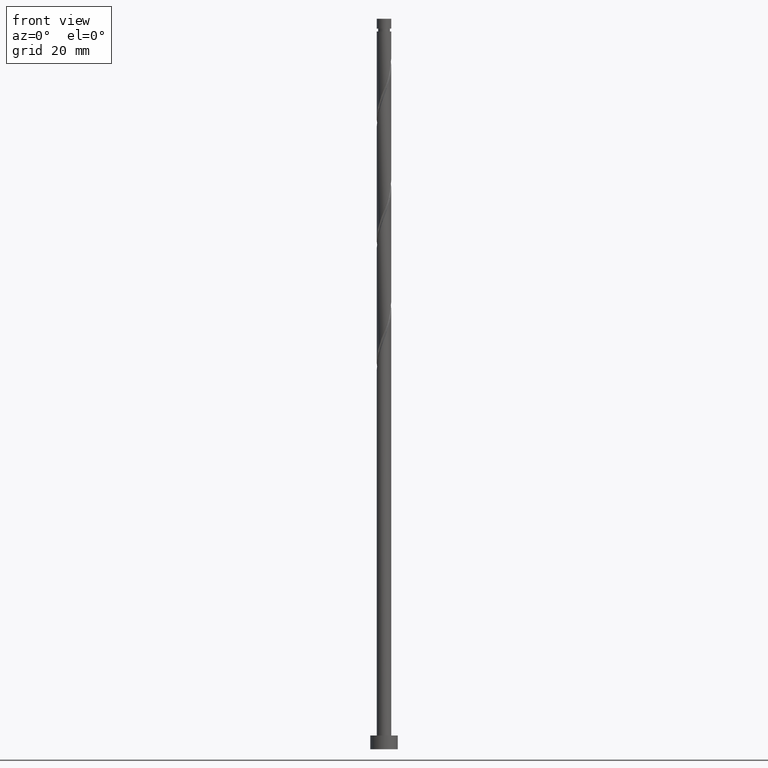
[diagram: clean part render]
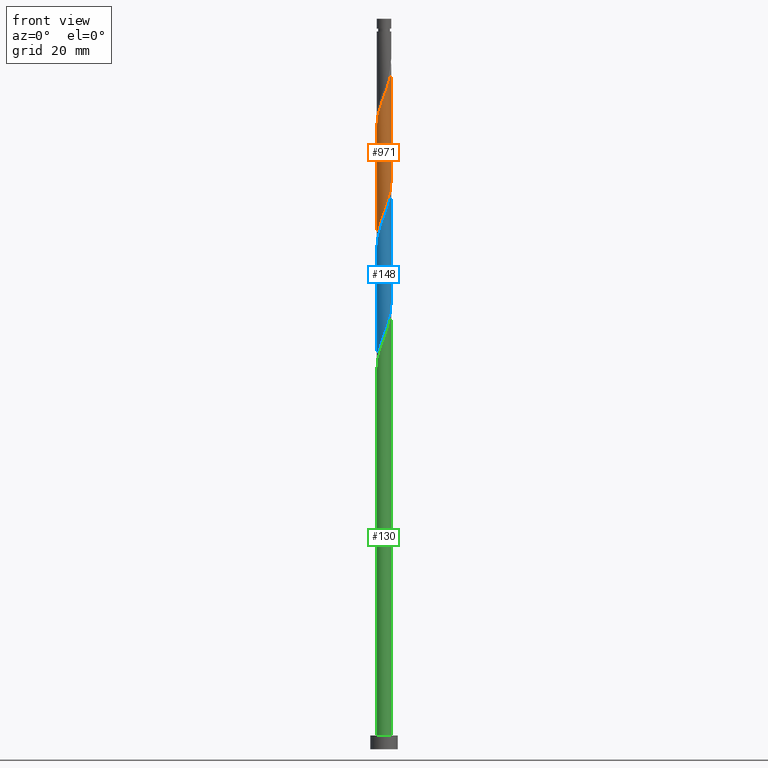
[diagram: same view with three faces highlighted in distinct colors, each labeled with its STEP entity id]
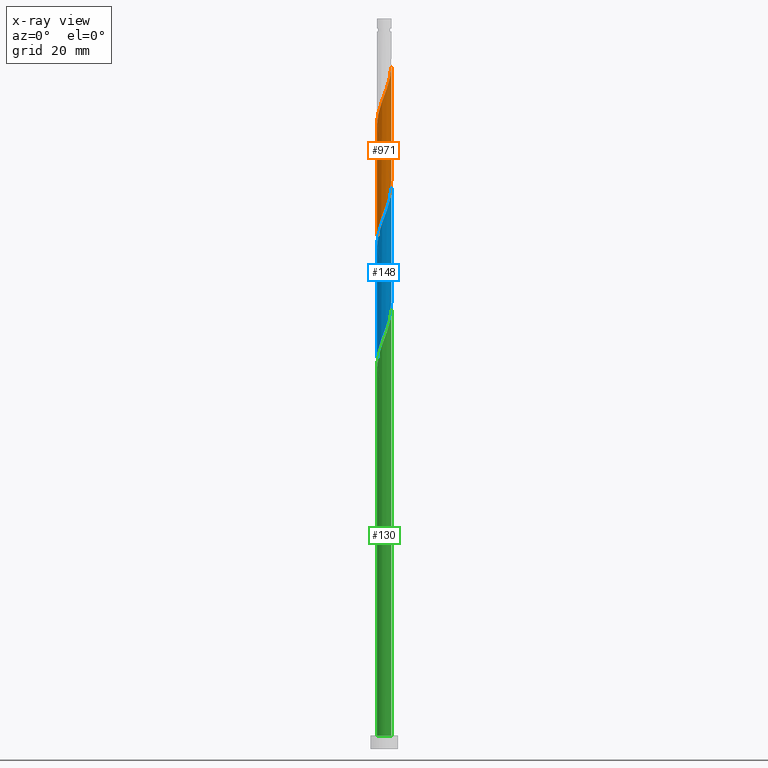
[diagram: x-ray of the same camera — body ghosted, the three highlighted faces saturated]
A machine part, front view with three faces highlighted in distinct colors.
The next image is the same camera in x-ray (body ghosted, the three faces saturated) — at least one of them is partly hidden behind the body in this view.
Their STEP definitions:

[orange] entity #971 — the highlighted cylindrical surface (edge-blend (fillet) strip) has radius 1.6 mm, axis along (-0, -0, -1).
#43 = CARTESIAN_POINT ( 'NONE',  ( -1.294036498596731199, -0.9409939108727107815, 139.0223680249231961 ) ) ;
#65 = CARTESIAN_POINT ( 'NONE',  ( 1.600000000000000089, -0.04604084243811525784, 124.5982093479907036 ) ) ;
#80 = CARTESIAN_POINT ( 'NONE',  ( 1.115576544678726467, -1.146947676645573955, 146.2950952976504198 ) ) ;
#86 = VERTEX_POINT ( 'NONE', #658 ) ;
#129 = CARTESIAN_POINT ( 'NONE',  ( -0.5438403448582374011, -1.522221569198840996, 116.5981256006807456 ) ) ;
#171 =( BOUNDED_CURVE ( )  B_SPLINE_CURVE ( 2, ( #1464, #65, #577, #1340, #1094, #1605, #1057, #453, #1195, #1571, #965, #176, #1095, #1615, #984, #129, #883, #1547, #258, #752, #248, #1293, #487, #507, #768 ),
 .UNSPECIFIED., .F., .T. ) 
 B_SPLINE_CURVE_WITH_KNOTS ( ( 3, 2, 2, 2, 2, 2, 2, 2, 2, 2, 2, 2, 3 ),
 ( 0.5545252162417512176, 0.5568181818181817677, 0.5681818181818182323, 0.5795454545454545858, 0.5909090909090909394, 0.6022727272727272929, 0.6136363636363636465, 0.6250000000000000000, 0.6363636363636363535, 0.6477272727272727071, 0.6590909090909090606, 0.6704545454545454142, 0.6795252162417513286 ),
 .UNSPECIFIED. ) 
 CURVE ( )  GEOMETRIC_REPRESENTATION_ITEM ( )  RATIONAL_B_SPLINE_CURVE ( ( 0.9061101570135671190, 0.9072237824201492273, 0.9090909090909268242, 0.8998376744372290625, 0.9090909090909268242, 0.8998376744372290625, 0.9090909090909268242, 0.8998376744372290625, 0.9090909090909268242, 0.8998376744372290625, 0.9090909090909268242, 0.8998376744372290625, 0.9090909090909268242, 0.8998376744372290625, 0.9090909090909268242, 0.8998376744372290625, 0.9090909090909268242, 0.8998376744372290625, 0.9090909090909268242, 0.8998376744372290625, 0.9090909090909268242, 0.8998376744372290625, 0.9090909090909268242, 0.9017048011080065484, 0.9061101570135671190 ) ) 
 REPRESENTATION_ITEM ( '' )  );
#176 = CARTESIAN_POINT ( 'NONE',  ( 0.3654675021120841749, -1.574596561449840948, 119.0223680249231961 ) ) ;
#179 = CARTESIAN_POINT ( 'NONE',  ( -1.600000000000000089, 0.000000000000000000, 160.0000000000000000 ) ) ;
#246 = VECTOR ( 'NONE', #1459, 1000.000000000000000 ) ;
#248 = CARTESIAN_POINT ( 'NONE',  ( -1.393520357653070585, -0.7861940045602343607, 113.5678225703777144 ) ) ;
#258 = CARTESIAN_POINT ( 'NONE',  ( -1.115576544678725579, -1.146947676645571956, 114.7799437824989326 ) ) ;
#308 = CARTESIAN_POINT ( 'NONE',  ( -1.158741999431794678, -1.127048271008177727, 139.6284286309837626 ) ) ;
#309 = CARTESIAN_POINT ( 'NONE',  ( 1.600000000000001865, -7.627978558783065711E-16, 149.6880650607737664 ) ) ;
#347 = CARTESIAN_POINT ( 'NONE',  ( 0.7472553546436820904, -1.414782469129566067, 145.0829740855291732 ) ) ;
#356 = EDGE_CURVE ( 'NONE', #473, #1479, #555, .T. ) ;
#359 = CARTESIAN_POINT ( 'NONE',  ( 0.9506703644291280009, -1.307343369060288252, 145.6890346915898533 ) ) ;
#398 = LINE ( 'NONE', #1288, #1561 ) ;
#409 = AXIS2_PLACEMENT_3D ( 'NONE', #745, #1241, #979 ) ;
#432 = CARTESIAN_POINT ( 'NONE',  ( -0.7942786156119749919, -1.407850243176184346, 140.8405498431049807 ) ) ;
#447 = CARTESIAN_POINT ( 'NONE',  ( 0.3183959798741190506, -1.568000000000002059, 143.8708528734080403 ) ) ;
#453 = CARTESIAN_POINT ( 'NONE',  ( 1.158741999431793124, -1.127048271008176172, 121.4466104491655898 ) ) ;
#470 = ORIENTED_EDGE ( 'NONE', *, *, #356, .F. ) ;
#473 = VERTEX_POINT ( 'NONE', #1499 ) ;
#477 = EDGE_LOOP ( 'NONE', ( #607, #470, #1509, #958 ) ) ;
#487 = CARTESIAN_POINT ( 'NONE',  ( -1.558569438835040399, -0.3617475699012057677, 112.3557013582565105 ) ) ;
#507 = CARTESIAN_POINT ( 'NONE',  ( -1.600000000000000755, -0.1832462838161953156, 111.8729339723468570 ) ) ;
#543 = CARTESIAN_POINT ( 'NONE',  ( -1.597352493251953831, -0.09200550147558182734, 136.5981256006807030 ) ) ;
#555 =( BOUNDED_CURVE ( )  B_SPLINE_CURVE ( 2, ( #1314, #670, #543, #1325, #678, #1197, #43, #308, #1579, #432, #946, #560, #1599, #572, #447, #596, #347, #359, #80, #706, #860, #734, #1590, #587, #960 ),
 .UNSPECIFIED., .F., .T. ) 
 B_SPLINE_CURVE_WITH_KNOTS ( ( 3, 2, 2, 2, 2, 2, 2, 2, 2, 2, 2, 2, 3 ),
 ( 0.5545252162417513286, 0.5568181818181818787, 0.5681818181818181213, 0.5795454545454545858, 0.5909090909090908283, 0.6022727272727272929, 0.6136363636363636465, 0.6250000000000000000, 0.6363636363636363535, 0.6477272727272727071, 0.6590909090909091717, 0.6704545454545454142, 0.6795252162417511066 ),
 .UNSPECIFIED. ) 
 CURVE ( )  GEOMETRIC_REPRESENTATION_ITEM ( )  RATIONAL_B_SPLINE_CURVE ( ( 0.9061101570135727812, 0.9072237824201550005, 0.9090909090909324863, 0.8998376744372347247, 0.9090909090909324863, 0.8998376744372347247, 0.9090909090909324863, 0.8998376744372347247, 0.9090909090909324863, 0.8998376744372347247, 0.9090909090909324863, 0.8998376744372347247, 0.9090909090909324863, 0.8998376744372347247, 0.9090909090909324863, 0.8998376744372347247, 0.9090909090909324863, 0.8998376744372347247, 0.9090909090909324863, 0.8998376744372347247, 0.9090909090909324863, 0.8998376744372347247, 0.9090909090909324863, 0.9017048011080124326, 0.9061101570135725591 ) ) 
 REPRESENTATION_ITEM ( '' )  );
#560 = CARTESIAN_POINT ( 'NONE',  ( -0.3654675021120846745, -1.574596561449842946, 142.0526710552261420 ) ) ;
#569 = EDGE_CURVE ( 'NONE', #1342, #86, #171, .T. ) ;
#572 = CARTESIAN_POINT ( 'NONE',  ( 0.09295161489000078325, -1.613778430801160901, 143.2647922673474454 ) ) ;
#577 = CARTESIAN_POINT ( 'NONE',  ( 1.597352493251951611, -0.09200550147558228531, 124.4769134794686209 ) ) ;
#587 = CARTESIAN_POINT ( 'NONE',  ( 1.600000000000000755, -0.1832462838162019769, 149.2021051078023959 ) ) ;
#596 = CARTESIAN_POINT ( 'NONE',  ( 0.5438403448582376232, -1.522221569198843882, 144.4769134794685783 ) ) ;
#607 = ORIENTED_EDGE ( 'NONE', *, *, #1119, .F. ) ;
#615 = CYLINDRICAL_SURFACE ( 'NONE', #409, 1.600000000000000089 ) ;
#658 = CARTESIAN_POINT ( 'NONE',  ( -1.599999999999999645, 1.936908281102771207E-15, 111.3869740193755575 ) ) ;
#670 = CARTESIAN_POINT ( 'NONE',  ( -1.600000000000002309, -0.04604084243811513294, 136.4768297321586488 ) ) ;
#678 = CARTESIAN_POINT ( 'NONE',  ( -1.506727548486655355, -0.5383048343006043845, 137.8102468128019495 ) ) ;
#706 = CARTESIAN_POINT ( 'NONE',  ( 1.280482724928325711, -0.9865519842308597687, 146.9011559037110430 ) ) ;
#734 = CARTESIAN_POINT ( 'NONE',  ( 1.506557990377819678, -0.5858360248896113953, 148.1132771158322896 ) ) ;
#745 = CARTESIAN_POINT ( 'NONE',  ( 0.000000000000000000, 0.000000000000000000, 160.0000000000000000 ) ) ;
#752 = CARTESIAN_POINT ( 'NONE',  ( -1.280482724928324378, -0.9865519842308576592, 114.1738831764383093 ) ) ;
#768 = CARTESIAN_POINT ( 'NONE',  ( -1.599999999999999645, 1.936908281102771207E-15, 111.3869740193755575 ) ) ;
#860 = CARTESIAN_POINT ( 'NONE',  ( 1.393520357653072139, -0.7861940045602361371, 147.5072165097716663 ) ) ;
#883 = CARTESIAN_POINT ( 'NONE',  ( -0.7472553546436819794, -1.414782469129563847, 115.9920649946200939 ) ) ;
#929 = LINE ( 'NONE', #179, #246 ) ;
#946 = CARTESIAN_POINT ( 'NONE',  ( -0.5798730588620299997, -1.491223402313013757, 141.4466104491655756 ) ) ;
#958 = ORIENTED_EDGE ( 'NONE', *, *, #569, .F. ) ;
#960 = CARTESIAN_POINT ( 'NONE',  ( 1.600000000000001865, -7.627978558783065711E-16, 149.6880650607737664 ) ) ;
#965 = CARTESIAN_POINT ( 'NONE',  ( 0.5798730588620285564, -1.491223402313011981, 119.6284286309837768 ) ) ;
#971 = ADVANCED_FACE ( 'NONE', ( #1517 ), #615, .T. ) ;
#979 = DIRECTION ( 'NONE',  ( -1.000000000000000000, 0.000000000000000000, 0.000000000000000000 ) ) ;
#984 = CARTESIAN_POINT ( 'NONE',  ( -0.3183959798741192726, -1.567999999999999838, 117.2041862067413547 ) ) ;
#1057 = CARTESIAN_POINT ( 'NONE',  ( 1.294036498596729423, -0.9409939108727097823, 122.0526710552261704 ) ) ;
#1094 = CARTESIAN_POINT ( 'NONE',  ( 1.506727548486652912, -0.5383048343006041625, 123.2647922673474170 ) ) ;
#1095 = CARTESIAN_POINT ( 'NONE',  ( 0.1362579436110410991, -1.594187496125499814, 118.4163074188625586 ) ) ;
#1119 = EDGE_CURVE ( 'NONE', #1479, #1342, #398, .T. ) ;
#1195 = CARTESIAN_POINT ( 'NONE',  ( 0.9765103075218826145, -1.267449257092179815, 120.8405498431049807 ) ) ;
#1197 = CARTESIAN_POINT ( 'NONE',  ( -1.429330997761667499, -0.7549395507372443914, 138.4163074188625160 ) ) ;
#1241 = DIRECTION ( 'NONE',  ( -0.000000000000000000, -0.000000000000000000, -1.000000000000000000 ) ) ;
#1288 = CARTESIAN_POINT ( 'NONE',  ( 1.600000000000000089, 1.959434878635765230E-16, 160.0000000000000000 ) ) ;
#1293 = CARTESIAN_POINT ( 'NONE',  ( -1.506557990377817235, -0.5858360248896108402, 112.9617619643171054 ) ) ;
#1314 = CARTESIAN_POINT ( 'NONE',  ( -1.600000000000001865, 6.805353420090775220E-16, 136.3547317274404520 ) ) ;
#1325 = CARTESIAN_POINT ( 'NONE',  ( -1.584124099211642767, -0.3216701178639647107, 137.2041862067413831 ) ) ;
#1340 = CARTESIAN_POINT ( 'NONE',  ( 1.584124099211640768, -0.3216701178639648773, 123.8708528734080261 ) ) ;
#1342 = VERTEX_POINT ( 'NONE', #1519 ) ;
#1459 = DIRECTION ( 'NONE',  ( -0.000000000000000000, -0.000000000000000000, -1.000000000000000000 ) ) ;
#1464 = CARTESIAN_POINT ( 'NONE',  ( 1.600000000000000311, 2.206131053765704864E-15, 124.7203073527089146 ) ) ;
#1479 = VERTEX_POINT ( 'NONE', #309 ) ;
#1499 = CARTESIAN_POINT ( 'NONE',  ( -1.600000000000001865, 6.805353420090775220E-16, 136.3547317274404520 ) ) ;
#1509 = ORIENTED_EDGE ( 'NONE', *, *, #1537, .T. ) ;
#1517 = FACE_OUTER_BOUND ( 'NONE', #477, .T. ) ;
#1519 = CARTESIAN_POINT ( 'NONE',  ( 1.600000000000000089, 2.206131053765704864E-15, 124.7203073527089146 ) ) ;
#1537 = EDGE_CURVE ( 'NONE', #473, #86, #929, .T. ) ;
#1547 = CARTESIAN_POINT ( 'NONE',  ( -0.9506703644291264466, -1.307343369060286697, 115.3860043885595417 ) ) ;
#1556 = DIRECTION ( 'NONE',  ( -0.000000000000000000, -0.000000000000000000, -1.000000000000000000 ) ) ;
#1561 = VECTOR ( 'NONE', #1556, 1000.000000000000000 ) ;
#1571 = CARTESIAN_POINT ( 'NONE',  ( 0.7942786156119733265, -1.407850243176182792, 120.2344892370443574 ) ) ;
#1579 = CARTESIAN_POINT ( 'NONE',  ( -0.9765103075218843909, -1.267449257092180925, 140.2344892370443290 ) ) ;
#1590 = CARTESIAN_POINT ( 'NONE',  ( 1.558569438835042176, -0.3617475699012064894, 148.7193377218928561 ) ) ;
#1599 = CARTESIAN_POINT ( 'NONE',  ( -0.1362579436110419318, -1.594187496125501813, 142.6587316612868221 ) ) ;
#1605 = CARTESIAN_POINT ( 'NONE',  ( 1.429330997761664834, -0.7549395507372437253, 122.6587316612867937 ) ) ;
#1615 = CARTESIAN_POINT ( 'NONE',  ( -0.09295161489000128285, -1.613778430801158903, 117.8102468128019495 ) ) ;

[blue] entity #148 — the highlighted cylindrical surface (edge-blend (fillet) strip) has radius 1.6 mm, axis along (-0, -0, -1).
#8 = CARTESIAN_POINT ( 'NONE',  ( -1.158741999431794678, -1.127048271008177727, 112.9617619643170769 ) ) ;
#13 = CARTESIAN_POINT ( 'NONE',  ( -0.5438403448582374011, -1.522221569198840996, 89.93145893401404578 ) ) ;
#34 = DIRECTION ( 'NONE',  ( -0.000000000000000000, -0.000000000000000000, -1.000000000000000000 ) ) ;
#64 = CARTESIAN_POINT ( 'NONE',  ( -1.115576544678725579, -1.146947676645571956, 88.11327711583223277 ) ) ;
#103 = CARTESIAN_POINT ( 'NONE',  ( -0.3654675021120846745, -1.574596561449842946, 115.3860043885595417 ) ) ;
#148 = ADVANCED_FACE ( 'NONE', ( #1033 ), #1209, .T. ) ;
#167 = EDGE_CURVE ( 'NONE', #1233, #1086, #286, .T. ) ;
#193 = ORIENTED_EDGE ( 'NONE', *, *, #1323, .F. ) ;
#201 = CARTESIAN_POINT ( 'NONE',  ( -1.506557990377817235, -0.5858360248896108402, 86.29509529765044817 ) ) ;
#205 = ORIENTED_EDGE ( 'NONE', *, *, #502, .F. ) ;
#230 = CARTESIAN_POINT ( 'NONE',  ( -1.600000000000002309, -0.04604084243811690236, 109.8101630654920058 ) ) ;
#245 = CARTESIAN_POINT ( 'NONE',  ( -1.600000000000002309, 2.901623216478264807E-15, 109.6880650607737948 ) ) ;
#255 = CARTESIAN_POINT ( 'NONE',  ( 0.09295161489000078325, -1.613778430801160901, 116.5981256006807456 ) ) ;
#260 = ORIENTED_EDGE ( 'NONE', *, *, #167, .T. ) ;
#262 = CARTESIAN_POINT ( 'NONE',  ( 0.5798730588620285564, -1.491223402313011981, 92.96176196431710537 ) ) ;
#267 = CARTESIAN_POINT ( 'NONE',  ( -1.584124099211642767, -0.3216701178639647107, 110.5375195400747117 ) ) ;
#285 = CARTESIAN_POINT ( 'NONE',  ( -1.599999999999999645, 1.936908281102771207E-15, 84.72030735270891455 ) ) ;
#286 = LINE ( 'NONE', #793, #1128 ) ;
#377 = CARTESIAN_POINT ( 'NONE',  ( 0.5438403448582376232, -1.522221569198843882, 117.8102468128019638 ) ) ;
#386 = CARTESIAN_POINT ( 'NONE',  ( -1.429330997761667499, -0.7549395507372443914, 111.7496407521959014 ) ) ;
#390 = CARTESIAN_POINT ( 'NONE',  ( 1.158741999431793124, -1.127048271008176172, 94.77994378249893259 ) ) ;
#394 =( BOUNDED_CURVE ( )  B_SPLINE_CURVE ( 2, ( #1582, #1460, #564, #1082, #1593, #1389, #1006, #390, #781, #894, #262, #772, #1544, #904, #1077, #13, #703, #1225, #64, #839, #1093, #201, #1604, #1202, #828 ),
 .UNSPECIFIED., .F., .T. ) 
 B_SPLINE_CURVE_WITH_KNOTS ( ( 3, 2, 2, 2, 2, 2, 2, 2, 2, 2, 2, 2, 3 ),
 ( 0.8045252162417513286, 0.8068181818181817677, 0.8181818181818182323, 0.8295454545454545858, 0.8409090909090909394, 0.8522727272727272929, 0.8636363636363636465, 0.8750000000000000000, 0.8863636363636363535, 0.8977272727272727071, 0.9090909090909090606, 0.9204545454545454142, 0.9295252162417513286 ),
 .UNSPECIFIED. ) 
 CURVE ( )  GEOMETRIC_REPRESENTATION_ITEM ( )  RATIONAL_B_SPLINE_CURVE ( ( 0.9061101570135671190, 0.9072237824201493384, 0.9090909090909268242, 0.8998376744372290625, 0.9090909090909268242, 0.8998376744372290625, 0.9090909090909268242, 0.8998376744372290625, 0.9090909090909268242, 0.8998376744372290625, 0.9090909090909268242, 0.8998376744372290625, 0.9090909090909268242, 0.8998376744372290625, 0.9090909090909268242, 0.8998376744372290625, 0.9090909090909268242, 0.8998376744372290625, 0.9090909090909268242, 0.8998376744372290625, 0.9090909090909268242, 0.8998376744372290625, 0.9090909090909268242, 0.9017048011080065484, 0.9061101570135671190 ) ) 
 REPRESENTATION_ITEM ( '' )  );
#484 = CARTESIAN_POINT ( 'NONE',  ( 0.7472553546436820904, -1.414782469129566067, 118.4163074188625444 ) ) ;
#502 = EDGE_CURVE ( 'NONE', #1233, #1108, #1663, .T. ) ;
#517 = CARTESIAN_POINT ( 'NONE',  ( 0.000000000000000000, 0.000000000000000000, 160.0000000000000000 ) ) ;
#522 = CARTESIAN_POINT ( 'NONE',  ( 1.393520357653072139, -0.7861940045602361371, 120.8405498431049665 ) ) ;
#564 = CARTESIAN_POINT ( 'NONE',  ( 1.597352493251951611, -0.09200550147558228531, 97.81024681280194955 ) ) ;
#617 = LINE ( 'NONE', #780, #888 ) ;
#703 = CARTESIAN_POINT ( 'NONE',  ( -0.7472553546436819794, -1.414782469129563847, 89.32539832795346513 ) ) ;
#735 = EDGE_CURVE ( 'NONE', #1116, #1086, #394, .T. ) ;
#750 = CARTESIAN_POINT ( 'NONE',  ( 1.115576544678726467, -1.146947676645573955, 119.6284286309837626 ) ) ;
#772 = CARTESIAN_POINT ( 'NONE',  ( 0.3654675021120841749, -1.574596561449840948, 92.35570135825649629 ) ) ;
#774 = CARTESIAN_POINT ( 'NONE',  ( -1.294036498596731199, -0.9409939108727107815, 112.3557013582564821 ) ) ;
#780 = CARTESIAN_POINT ( 'NONE',  ( 1.600000000000000089, 1.959434878635765230E-16, 160.0000000000000000 ) ) ;
#781 = CARTESIAN_POINT ( 'NONE',  ( 0.9765103075218826145, -1.267449257092179815, 94.17388317643830931 ) ) ;
#793 = CARTESIAN_POINT ( 'NONE',  ( -1.600000000000000089, 0.000000000000000000, 160.0000000000000000 ) ) ;
#828 = CARTESIAN_POINT ( 'NONE',  ( -1.599999999999999645, 1.936908281102771207E-15, 84.72030735270891455 ) ) ;
#839 = CARTESIAN_POINT ( 'NONE',  ( -1.280482724928324378, -0.9865519842308576592, 87.50721650977165211 ) ) ;
#874 = CARTESIAN_POINT ( 'NONE',  ( -1.597352493251953831, -0.09200550147558182734, 109.9314589340140742 ) ) ;
#884 = CARTESIAN_POINT ( 'NONE',  ( 1.600000000000002309, 1.473246839294376546E-15, 123.0213983941071092 ) ) ;
#888 = VECTOR ( 'NONE', #1296, 1000.000000000000000 ) ;
#889 = CARTESIAN_POINT ( 'NONE',  ( -0.9765103075218843909, -1.267449257092180925, 113.5678225703777144 ) ) ;
#894 = CARTESIAN_POINT ( 'NONE',  ( 0.7942786156119733265, -1.407850243176182792, 93.56782257037772865 ) ) ;
#904 = CARTESIAN_POINT ( 'NONE',  ( -0.09295161489000128285, -1.613778430801158903, 91.14358014613530656 ) ) ;
#919 = CARTESIAN_POINT ( 'NONE',  ( 1.600000000000003419, -0.1832462838161914298, 122.5354384411358240 ) ) ;
#936 = DIRECTION ( 'NONE',  ( -1.000000000000000000, 0.000000000000000000, 0.000000000000000000 ) ) ;
#1000 = CARTESIAN_POINT ( 'NONE',  ( 0.9506703644291280009, -1.307343369060288252, 119.0223680249231677 ) ) ;
#1006 = CARTESIAN_POINT ( 'NONE',  ( 1.294036498596729423, -0.9409939108727097823, 95.38600438855951325 ) ) ;
#1033 = FACE_OUTER_BOUND ( 'NONE', #1255, .T. ) ;
#1077 = CARTESIAN_POINT ( 'NONE',  ( -0.3183959798741192726, -1.567999999999999838, 90.53751954007466907 ) ) ;
#1082 = CARTESIAN_POINT ( 'NONE',  ( 1.584124099211640768, -0.3216701178639648773, 97.20418620674136889 ) ) ;
#1086 = VERTEX_POINT ( 'NONE', #285 ) ;
#1093 = CARTESIAN_POINT ( 'NONE',  ( -1.393520357653070585, -0.7861940045602343607, 86.90115590371105725 ) ) ;
#1108 = VERTEX_POINT ( 'NONE', #884 ) ;
#1116 = VERTEX_POINT ( 'NONE', #1526 ) ;
#1128 = VECTOR ( 'NONE', #1449, 1000.000000000000000 ) ;
#1131 = CARTESIAN_POINT ( 'NONE',  ( -0.1362579436110419318, -1.594187496125501813, 115.9920649946201081 ) ) ;
#1180 = CARTESIAN_POINT ( 'NONE',  ( 1.558569438835042176, -0.3617475699012064894, 122.0526710552261704 ) ) ;
#1202 = CARTESIAN_POINT ( 'NONE',  ( -1.600000000000000755, -0.1832462838161953156, 85.20626730568019980 ) ) ;
#1209 = CYLINDRICAL_SURFACE ( 'NONE', #1500, 1.600000000000000089 ) ;
#1225 = CARTESIAN_POINT ( 'NONE',  ( -0.9506703644291264466, -1.307343369060286697, 88.71933772189285605 ) ) ;
#1233 = VERTEX_POINT ( 'NONE', #1282 ) ;
#1255 = EDGE_LOOP ( 'NONE', ( #193, #205, #260, #1554 ) ) ;
#1262 = CARTESIAN_POINT ( 'NONE',  ( -0.5798730588620299997, -1.491223402313013757, 114.7799437824989326 ) ) ;
#1282 = CARTESIAN_POINT ( 'NONE',  ( -1.600000000000002309, 2.901623216478265202E-15, 109.6880650607737948 ) ) ;
#1296 = DIRECTION ( 'NONE',  ( -0.000000000000000000, -0.000000000000000000, -1.000000000000000000 ) ) ;
#1323 = EDGE_CURVE ( 'NONE', #1108, #1116, #617, .T. ) ;
#1389 = CARTESIAN_POINT ( 'NONE',  ( 1.429330997761664834, -0.7549395507372437253, 95.99206499462013653 ) ) ;
#1425 = CARTESIAN_POINT ( 'NONE',  ( 1.280482724928325711, -0.9865519842308597687, 120.2344892370443716 ) ) ;
#1449 = DIRECTION ( 'NONE',  ( -0.000000000000000000, -0.000000000000000000, -1.000000000000000000 ) ) ;
#1460 = CARTESIAN_POINT ( 'NONE',  ( 1.600000000000000089, -0.04604084243811749216, 97.93154268132403217 ) ) ;
#1500 = AXIS2_PLACEMENT_3D ( 'NONE', #517, #34, #936 ) ;
#1513 = CARTESIAN_POINT ( 'NONE',  ( -0.7942786156119749919, -1.407850243176184346, 114.1738831764383093 ) ) ;
#1522 = CARTESIAN_POINT ( 'NONE',  ( -1.506727548486655355, -0.5383048343006043845, 111.1435801461352924 ) ) ;
#1526 = CARTESIAN_POINT ( 'NONE',  ( 1.600000000000000089, 2.206131053765704864E-15, 98.05364068604224315 ) ) ;
#1540 = CARTESIAN_POINT ( 'NONE',  ( 1.600000000000002309, 1.473246839294376349E-15, 123.0213983941071092 ) ) ;
#1544 = CARTESIAN_POINT ( 'NONE',  ( 0.1362579436110410991, -1.594187496125499814, 91.74964075219587301 ) ) ;
#1554 = ORIENTED_EDGE ( 'NONE', *, *, #735, .F. ) ;
#1563 = CARTESIAN_POINT ( 'NONE',  ( 1.506557990377819678, -0.5858360248896113953, 121.4466104491655756 ) ) ;
#1582 = CARTESIAN_POINT ( 'NONE',  ( 1.600000000000000311, 2.206131053765704864E-15, 98.05364068604224315 ) ) ;
#1593 = CARTESIAN_POINT ( 'NONE',  ( 1.506727548486652912, -0.5383048343006041625, 96.59812560068073140 ) ) ;
#1604 = CARTESIAN_POINT ( 'NONE',  ( -1.558569438835040399, -0.3617475699012057677, 85.68903469158982489 ) ) ;
#1640 = CARTESIAN_POINT ( 'NONE',  ( 0.3183959798741190506, -1.568000000000002059, 117.2041862067413405 ) ) ;
#1663 =( BOUNDED_CURVE ( )  B_SPLINE_CURVE ( 2, ( #245, #230, #874, #267, #1522, #386, #774, #8, #889, #1513, #1262, #103, #1131, #255, #1640, #377, #484, #1000, #750, #1425, #522, #1563, #1180, #919, #1540 ),
 .UNSPECIFIED., .F., .T. ) 
 B_SPLINE_CURVE_WITH_KNOTS ( ( 3, 2, 2, 2, 2, 2, 2, 2, 2, 2, 2, 2, 3 ),
 ( 0.3045252162417513286, 0.3068181818181817677, 0.3181818181818182323, 0.3295454545454545858, 0.3409090909090909394, 0.3522727272727272929, 0.3636363636363636465, 0.3750000000000000000, 0.3863636363636363535, 0.3977272727272727071, 0.4090909090909090606, 0.4204545454545454142, 0.4295252162417515507 ),
 .UNSPECIFIED. ) 
 CURVE ( )  GEOMETRIC_REPRESENTATION_ITEM ( )  RATIONAL_B_SPLINE_CURVE ( ( 0.9061101570135728922, 0.9072237824201550005, 0.9090909090909324863, 0.8998376744372347247, 0.9090909090909324863, 0.8998376744372347247, 0.9090909090909324863, 0.8998376744372347247, 0.9090909090909324863, 0.8998376744372347247, 0.9090909090909324863, 0.8998376744372347247, 0.9090909090909324863, 0.8998376744372347247, 0.9090909090909324863, 0.8998376744372347247, 0.9090909090909324863, 0.8998376744372347247, 0.9090909090909324863, 0.8998376744372347247, 0.9090909090909324863, 0.8998376744372347247, 0.9090909090909324863, 0.9017048011080119885, 0.9061101570135730032 ) ) 
 REPRESENTATION_ITEM ( '' )  );

[green] entity #130 — the highlighted cylindrical surface (edge-blend (fillet) strip) has radius 1.6 mm, axis along (-0, -0, -1).
#9 = DIRECTION ( 'NONE',  ( -0.000000000000000000, -0.000000000000000000, -1.000000000000000000 ) ) ;
#32 = CARTESIAN_POINT ( 'NONE',  ( 0.09295161489000078325, -1.613778430801160901, 89.93145893401405999 ) ) ;
#45 = EDGE_CURVE ( 'NONE', #1386, #1616, #1031, .T. ) ;
#50 = DIRECTION ( 'NONE',  ( 1.000000000000000000, 0.000000000000000000, 0.000000000000000000 ) ) ;
#130 = ADVANCED_FACE ( 'NONE', ( #531 ), #917, .T. ) ;
#142 = CARTESIAN_POINT ( 'NONE',  ( -1.597352493251953831, -0.09200550147558182734, 83.26479226734740280 ) ) ;
#157 = CARTESIAN_POINT ( 'NONE',  ( -0.5798730588620299997, -1.491223402313013757, 88.11327711583227540 ) ) ;
#183 = DIRECTION ( 'NONE',  ( -0.000000000000000000, -0.000000000000000000, -1.000000000000000000 ) ) ;
#188 = DIRECTION ( 'NONE',  ( 0.000000000000000000, 0.000000000000000000, 1.000000000000000000 ) ) ;
#208 = CIRCLE ( 'NONE', #905, 1.600000000000000089 ) ;
#252 = CARTESIAN_POINT ( 'NONE',  ( -1.600000000000000089, 0.000000000000000000, 3.000000000000000000 ) ) ;
#283 = DIRECTION ( 'NONE',  ( -1.000000000000000000, 0.000000000000000000, 0.000000000000000000 ) ) ;
#284 = ORIENTED_EDGE ( 'NONE', *, *, #402, .T. ) ;
#305 = CARTESIAN_POINT ( 'NONE',  ( 0.5438403448582376232, -1.522221569198843882, 91.14358014613530656 ) ) ;
#313 = CARTESIAN_POINT ( 'NONE',  ( 1.600000000000000089, 1.959434878635765230E-16, 160.0000000000000000 ) ) ;
#324 = CARTESIAN_POINT ( 'NONE',  ( -0.1362579436110419318, -1.594187496125501813, 89.32539832795345092 ) ) ;
#333 = CARTESIAN_POINT ( 'NONE',  ( 1.600000000000001643, -0.1832462838161991736, 95.86877177446910991 ) ) ;
#342 = CARTESIAN_POINT ( 'NONE',  ( -1.429330997761667499, -0.7549395507372443914, 85.08297408552923002 ) ) ;
#353 =( BOUNDED_CURVE ( )  B_SPLINE_CURVE ( 2, ( #1017, #777, #142, #593, #1625, #342, #848, #983, #354, #857, #157, #1456, #324, #32, #541, #305, #814, #1322, #1331, #1076, #1205, #1227, #693, #333, #550 ),
 .UNSPECIFIED., .F., .T. ) 
 B_SPLINE_CURVE_WITH_KNOTS ( ( 3, 2, 2, 2, 2, 2, 2, 2, 2, 2, 2, 2, 3 ),
 ( 0.05452521624175135639, 0.05681818181818176772, 0.06818181818181823228, 0.07954545454545458583, 0.09090909090909093937, 0.1022727272727272929, 0.1136363636363636465, 0.1250000000000000000, 0.1363636363636363535, 0.1477272727272727071, 0.1590909090909090606, 0.1704545454545454142, 0.1795252162417511621 ),
 .UNSPECIFIED. ) 
 CURVE ( )  GEOMETRIC_REPRESENTATION_ITEM ( )  RATIONAL_B_SPLINE_CURVE ( ( 0.9061101570135730032, 0.9072237824201551115, 0.9090909090909324863, 0.8998376744372347247, 0.9090909090909324863, 0.8998376744372347247, 0.9090909090909324863, 0.8998376744372347247, 0.9090909090909324863, 0.8998376744372347247, 0.9090909090909324863, 0.8998376744372347247, 0.9090909090909324863, 0.8998376744372347247, 0.9090909090909324863, 0.8998376744372347247, 0.9090909090909324863, 0.8998376744372347247, 0.9090909090909324863, 0.8998376744372347247, 0.9090909090909324863, 0.8998376744372347247, 0.9090909090909324863, 0.9017048011080123215, 0.9061101570135726702 ) ) 
 REPRESENTATION_ITEM ( '' )  );
#354 = CARTESIAN_POINT ( 'NONE',  ( -0.9765103075218843909, -1.267449257092180925, 86.90115590371101462 ) ) ;
#368 = CARTESIAN_POINT ( 'NONE',  ( -1.600000000000001865, -1.555509353163605596E-15, 83.02139839410712341 ) ) ;
#402 = EDGE_CURVE ( 'NONE', #1616, #1626, #208, .T. ) ;
#427 = AXIS2_PLACEMENT_3D ( 'NONE', #1432, #776, #283 ) ;
#450 = VECTOR ( 'NONE', #183, 1000.000000000000000 ) ;
#531 = FACE_OUTER_BOUND ( 'NONE', #1555, .T. ) ;
#541 = CARTESIAN_POINT ( 'NONE',  ( 0.3183959798741190506, -1.568000000000002059, 90.53751954007469749 ) ) ;
#544 = EDGE_CURVE ( 'NONE', #1386, #743, #353, .T. ) ;
#550 = CARTESIAN_POINT ( 'NONE',  ( 1.600000000000002309, 1.473246839294376546E-15, 96.35473172744043779 ) ) ;
#593 = CARTESIAN_POINT ( 'NONE',  ( -1.584124099211642767, -0.3216701178639647107, 83.87085287340799766 ) ) ;
#693 = CARTESIAN_POINT ( 'NONE',  ( 1.558569438835042176, -0.3617475699012064894, 95.38600438855948482 ) ) ;
#743 = VERTEX_POINT ( 'NONE', #1348 ) ;
#747 = EDGE_CURVE ( 'NONE', #743, #1626, #1073, .T. ) ;
#763 = CARTESIAN_POINT ( 'NONE',  ( 1.600000000000000089, 1.959434878635765230E-16, 3.000000000000000000 ) ) ;
#776 = DIRECTION ( 'NONE',  ( -0.000000000000000000, -0.000000000000000000, -1.000000000000000000 ) ) ;
#777 = CARTESIAN_POINT ( 'NONE',  ( -1.600000000000001643, -0.04604084243811746441, 83.14349639882534859 ) ) ;
#814 = CARTESIAN_POINT ( 'NONE',  ( 0.7472553546436820904, -1.414782469129566067, 91.74964075219587301 ) ) ;
#848 = CARTESIAN_POINT ( 'NONE',  ( -1.294036498596731199, -0.9409939108727107815, 85.68903469158982489 ) ) ;
#857 = CARTESIAN_POINT ( 'NONE',  ( -0.7942786156119749919, -1.407850243176184346, 87.50721650977163790 ) ) ;
#868 = ORIENTED_EDGE ( 'NONE', *, *, #747, .F. ) ;
#905 = AXIS2_PLACEMENT_3D ( 'NONE', #953, #188, #50 ) ;
#917 = CYLINDRICAL_SURFACE ( 'NONE', #427, 1.600000000000000089 ) ;
#953 = CARTESIAN_POINT ( 'NONE',  ( 0.000000000000000000, 0.000000000000000000, 3.000000000000000000 ) ) ;
#983 = CARTESIAN_POINT ( 'NONE',  ( -1.158741999431794678, -1.127048271008177727, 86.29509529765044817 ) ) ;
#1017 = CARTESIAN_POINT ( 'NONE',  ( -1.600000000000001865, -1.555509353163605596E-15, 83.02139839410712341 ) ) ;
#1031 = LINE ( 'NONE', #1294, #1660 ) ;
#1073 = LINE ( 'NONE', #313, #450 ) ;
#1076 = CARTESIAN_POINT ( 'NONE',  ( 1.280482724928325711, -0.9865519842308597687, 93.56782257037771444 ) ) ;
#1122 = ORIENTED_EDGE ( 'NONE', *, *, #544, .F. ) ;
#1205 = CARTESIAN_POINT ( 'NONE',  ( 1.393520357653072139, -0.7861940045602361371, 94.17388317643830931 ) ) ;
#1227 = CARTESIAN_POINT ( 'NONE',  ( 1.506557990377819678, -0.5858360248896113953, 94.77994378249890417 ) ) ;
#1294 = CARTESIAN_POINT ( 'NONE',  ( -1.600000000000000089, 0.000000000000000000, 160.0000000000000000 ) ) ;
#1322 = CARTESIAN_POINT ( 'NONE',  ( 0.9506703644291280009, -1.307343369060288252, 92.35570135825649629 ) ) ;
#1331 = CARTESIAN_POINT ( 'NONE',  ( 1.115576544678726467, -1.146947676645573955, 92.96176196431710537 ) ) ;
#1348 = CARTESIAN_POINT ( 'NONE',  ( 1.600000000000002309, 1.473246839294376546E-15, 96.35473172744042358 ) ) ;
#1386 = VERTEX_POINT ( 'NONE', #368 ) ;
#1432 = CARTESIAN_POINT ( 'NONE',  ( 0.000000000000000000, 0.000000000000000000, 160.0000000000000000 ) ) ;
#1456 = CARTESIAN_POINT ( 'NONE',  ( -0.3654675021120846745, -1.574596561449842946, 88.71933772189287026 ) ) ;
#1555 = EDGE_LOOP ( 'NONE', ( #868, #1122, #1645, #284 ) ) ;
#1616 = VERTEX_POINT ( 'NONE', #252 ) ;
#1625 = CARTESIAN_POINT ( 'NONE',  ( -1.506727548486655355, -0.5383048343006043845, 84.47691347946862095 ) ) ;
#1626 = VERTEX_POINT ( 'NONE', #763 ) ;
#1645 = ORIENTED_EDGE ( 'NONE', *, *, #45, .T. ) ;
#1660 = VECTOR ( 'NONE', #9, 1000.000000000000000 ) ;